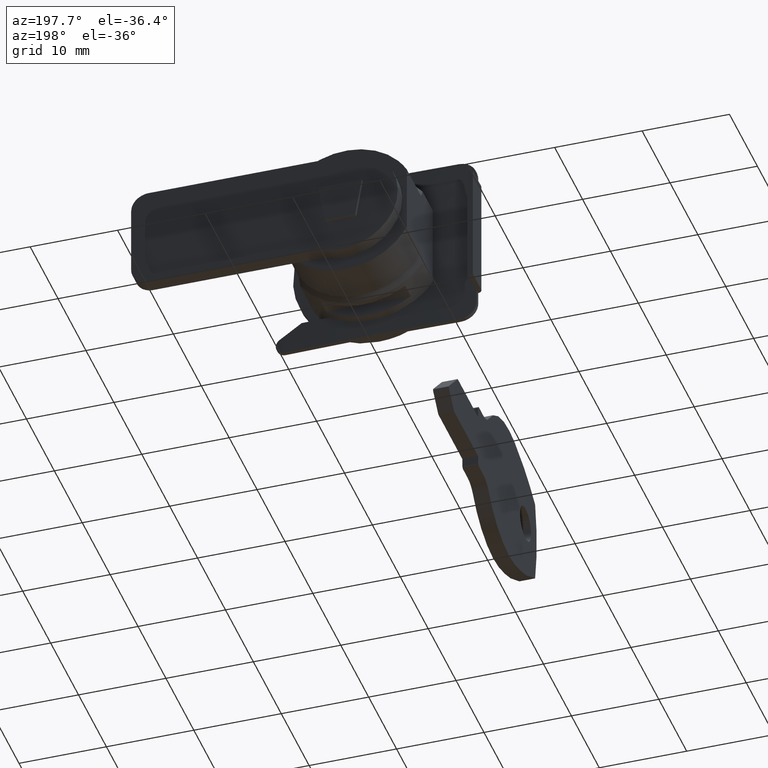
[diagram: clean part render]
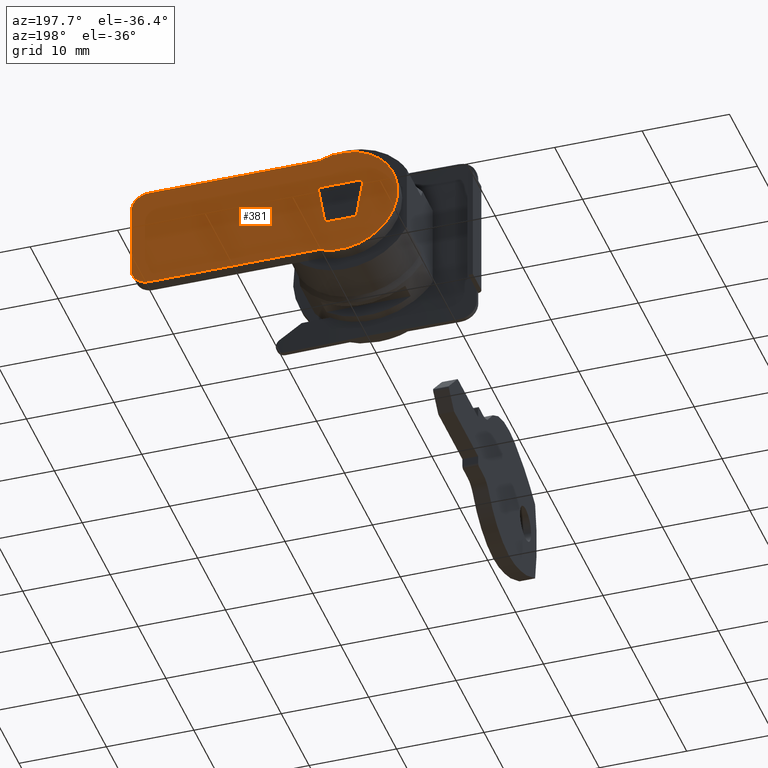
[diagram: same view with one face highlighted and labeled with its STEP entity id]
A machine part, auxiliary view. The second image highlights one B-rep face of the part: STEP entity #381.
In plain terms, the highlighted face is a freeform B-spline surface patch.
Its self-contained STEP definition (entity closure, byte-faithful):
#58=CARTESIAN_POINT('',(23.998999999999999,12.600000000000000,4.0));
#59=VERTEX_POINT('',#58);
#60=CARTESIAN_POINT('',(21.998999999999999,12.600000000000000,6.0));
#61=VERTEX_POINT('',#60);
#62=CARTESIAN_POINT('',(23.998999999999999,12.600000000000000,4.0));
#63=CARTESIAN_POINT('',(23.998999999999992,12.599999999999996,6.0));
#64=CARTESIAN_POINT('',(21.998999999999999,12.600000000000000,6.0));
#72=(BOUNDED_CURVE()B_SPLINE_CURVE(2,(#62,#63,#64),.UNSPECIFIED.,.F.,.U.)CURVE()GEOMETRIC_REPRESENTATION_ITEM()QUASI_UNIFORM_CURVE()RATIONAL_B_SPLINE_CURVE((1.0,0.707106781186548,1.0))REPRESENTATION_ITEM(''));
#73=EDGE_CURVE('',#59,#61,#72,.T.);
#119=CARTESIAN_POINT('',(21.998999999999999,12.600000000000000,-6.0));
#120=VERTEX_POINT('',#119);
#121=CARTESIAN_POINT('',(23.998999999999999,12.600000000000000,-4.0));
#122=VERTEX_POINT('',#121);
#123=CARTESIAN_POINT('',(21.998999999999999,12.600000000000000,-6.0));
#124=CARTESIAN_POINT('',(23.998999999999992,12.599999999999996,-6.0));
#125=CARTESIAN_POINT('',(23.998999999999999,12.600000000000000,-4.0));
#133=(BOUNDED_CURVE()B_SPLINE_CURVE(2,(#123,#124,#125),.UNSPECIFIED.,.F.,.U.)CURVE()GEOMETRIC_REPRESENTATION_ITEM()QUASI_UNIFORM_CURVE()RATIONAL_B_SPLINE_CURVE((1.0,0.707106781186548,1.0))REPRESENTATION_ITEM(''));
#134=EDGE_CURVE('',#120,#122,#133,.T.);
#180=CARTESIAN_POINT('',(1.749000000000000,12.600000000000000,-2.450000000000000));
#181=VERTEX_POINT('',#180);
#187=CARTESIAN_POINT('',(-1.751000000000120,12.600000000000000,-2.450000000000000));
#188=VERTEX_POINT('',#187);
#189=CARTESIAN_POINT('',(1.749000000000000,12.600000000000000,-2.450000000000000));
#190=CARTESIAN_POINT('',(-1.751000000000120,12.600000000000000,-2.450000000000000));
#191=QUASI_UNIFORM_CURVE('',1,(#189,#190),.UNSPECIFIED.,.F.,.U.);
#192=EDGE_CURVE('',#181,#188,#191,.T.);
#214=CARTESIAN_POINT('',(2.498999999999880,12.600000000000000,2.050000000000000));
#215=VERTEX_POINT('',#214);
#221=CARTESIAN_POINT('',(2.498999999999880,12.600000000000000,2.050000000000000));
#222=CARTESIAN_POINT('',(1.749000000000000,12.600000000000000,-2.450000000000000));
#223=QUASI_UNIFORM_CURVE('',1,(#221,#222),.UNSPECIFIED.,.F.,.U.);
#224=EDGE_CURVE('',#215,#181,#223,.T.);
#242=CARTESIAN_POINT('',(-2.501000000000000,12.600000000000000,2.050000000000000));
#243=VERTEX_POINT('',#242);
#249=CARTESIAN_POINT('',(-2.501000000000000,12.600000000000000,2.050000000000000));
#250=CARTESIAN_POINT('',(2.498999999999880,12.600000000000000,2.050000000000000));
#251=QUASI_UNIFORM_CURVE('',1,(#249,#250),.UNSPECIFIED.,.F.,.U.);
#252=EDGE_CURVE('',#243,#215,#251,.T.);
#269=CARTESIAN_POINT('',(-1.751000000000120,12.600000000000000,-2.450000000000000));
#270=CARTESIAN_POINT('',(-2.501000000000000,12.600000000000000,2.050000000000000));
#271=QUASI_UNIFORM_CURVE('',1,(#269,#270),.UNSPECIFIED.,.F.,.U.);
#272=EDGE_CURVE('',#188,#243,#271,.T.);
#330=CARTESIAN_POINT('',(-8.023424990886969,12.600000000000000,-7.149340071871579));
#331=CARTESIAN_POINT('',(25.522425808933949,12.600000000000000,-7.149340071871579));
#332=CARTESIAN_POINT('',(-8.023424990886969,12.600000000000000,7.149340305348822));
#333=CARTESIAN_POINT('',(25.522425808933949,12.600000000000000,7.149340305348822));
#334=B_SPLINE_SURFACE_WITH_KNOTS('',1,1,((#330,#332),(#331,#333)),.UNSPECIFIED.,.F.,.F.,.U.,(2,2),(2,2),(0.0,33.545850799820911),(0.0,14.298680377220400),.UNSPECIFIED.);
#335=CARTESIAN_POINT('',(2.500000000000000,12.600000000000000,-6.0));
#336=VERTEX_POINT('',#335);
#337=CARTESIAN_POINT('',(21.998999999999999,12.600000000000000,-6.0));
#338=CARTESIAN_POINT('',(2.500000000000000,12.600000000000000,-6.0));
#339=QUASI_UNIFORM_CURVE('',1,(#337,#338),.UNSPECIFIED.,.F.,.U.);
#340=EDGE_CURVE('',#120,#336,#339,.T.);
#341=ORIENTED_EDGE('',*,*,#340,.T.);
#342=CARTESIAN_POINT('',(2.500003670632160,12.600000000000000,5.999998470568620));
#343=VERTEX_POINT('',#342);
#344=CARTESIAN_POINT('',(2.500003670632160,12.600000000000000,5.999998470568616));
#345=CARTESIAN_POINT('',(-2.110609236133333,12.600000000000000,7.921090492061310));
#346=CARTESIAN_POINT('',(-5.154034480202897,12.600000000000000,3.960546499774955));
#347=CARTESIAN_POINT('',(-8.197459724272463,12.600000000000000,0.000002507488599));
#348=CARTESIAN_POINT('',(-5.154036903153804,12.600000000000000,-3.960543346679687));
#349=CARTESIAN_POINT('',(-2.110614082035147,12.600000000000000,-7.921089200847972));
#350=CARTESIAN_POINT('',(2.499999999999994,12.600000000000000,-6.000000000000002));
#358=(BOUNDED_CURVE()B_SPLINE_CURVE(2,(#344,#345,#346,#347,#348,#349,#350),.UNSPECIFIED.,.F.,.U.)B_SPLINE_CURVE_WITH_KNOTS((3,2,2,3),(0.0,0.333333333333333,0.666666666666667,1.0),.UNSPECIFIED.)CURVE()GEOMETRIC_REPRESENTATION_ITEM()RATIONAL_B_SPLINE_CURVE((1.0,0.792928567950553,1.0,0.792928567950553,1.0,0.792928567950553,1.0))REPRESENTATION_ITEM(''));
#359=EDGE_CURVE('',#343,#336,#358,.T.);
#360=ORIENTED_EDGE('',*,*,#359,.F.);
#361=CARTESIAN_POINT('',(2.500003670632160,12.600000000000000,5.999998470568620));
#362=CARTESIAN_POINT('',(21.998999999999999,12.600000000000000,6.0));
#363=QUASI_UNIFORM_CURVE('',1,(#361,#362),.UNSPECIFIED.,.F.,.U.);
#364=EDGE_CURVE('',#343,#61,#363,.T.);
#365=ORIENTED_EDGE('',*,*,#364,.T.);
#366=ORIENTED_EDGE('',*,*,#73,.F.);
#367=CARTESIAN_POINT('',(23.998999999999999,12.600000000000000,4.0));
#368=CARTESIAN_POINT('',(23.998999999999999,12.600000000000000,-4.0));
#369=QUASI_UNIFORM_CURVE('',1,(#367,#368),.UNSPECIFIED.,.F.,.U.);
#370=EDGE_CURVE('',#59,#122,#369,.T.);
#371=ORIENTED_EDGE('',*,*,#370,.T.);
#372=ORIENTED_EDGE('',*,*,#134,.F.);
#373=EDGE_LOOP('',(#341,#360,#365,#366,#371,#372));
#374=FACE_OUTER_BOUND('',#373,.T.);
#375=ORIENTED_EDGE('',*,*,#272,.F.);
#376=ORIENTED_EDGE('',*,*,#192,.F.);
#377=ORIENTED_EDGE('',*,*,#224,.F.);
#378=ORIENTED_EDGE('',*,*,#252,.F.);
#379=EDGE_LOOP('',(#375,#376,#377,#378));
#380=FACE_BOUND('',#379,.T.);
#381=ADVANCED_FACE('',(#374,#380),#334,.F.);